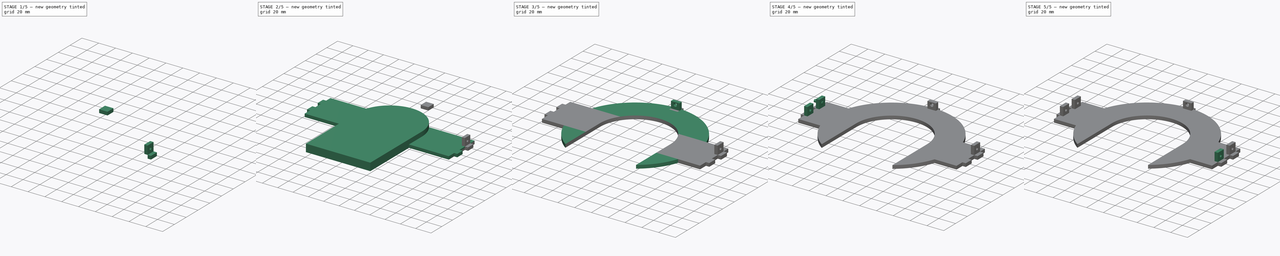
[diagram: build sequence overview — one tinted view per stage of 5, left to right]
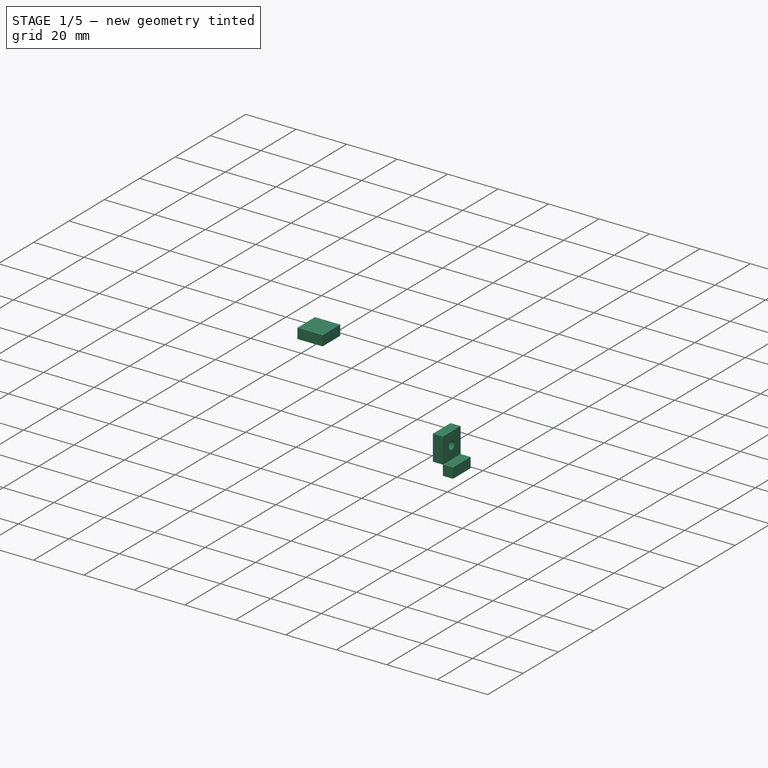
[diagram: stage 1 of 5 — iso view after this stage's code; geometry added in this stage tinted green]
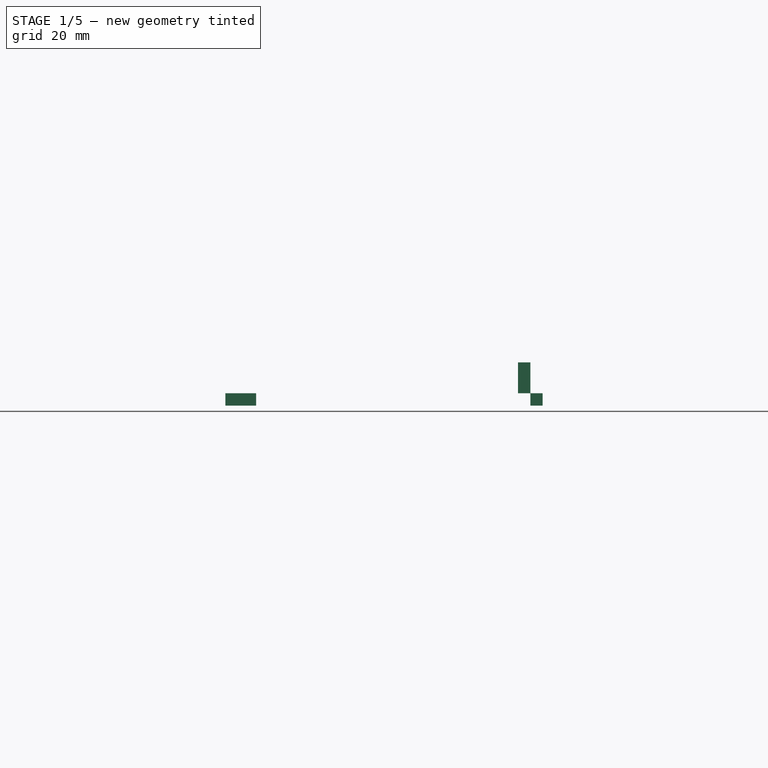
[diagram: stage 1 of 5 — front view after this stage's code; geometry added in this stage tinted green]
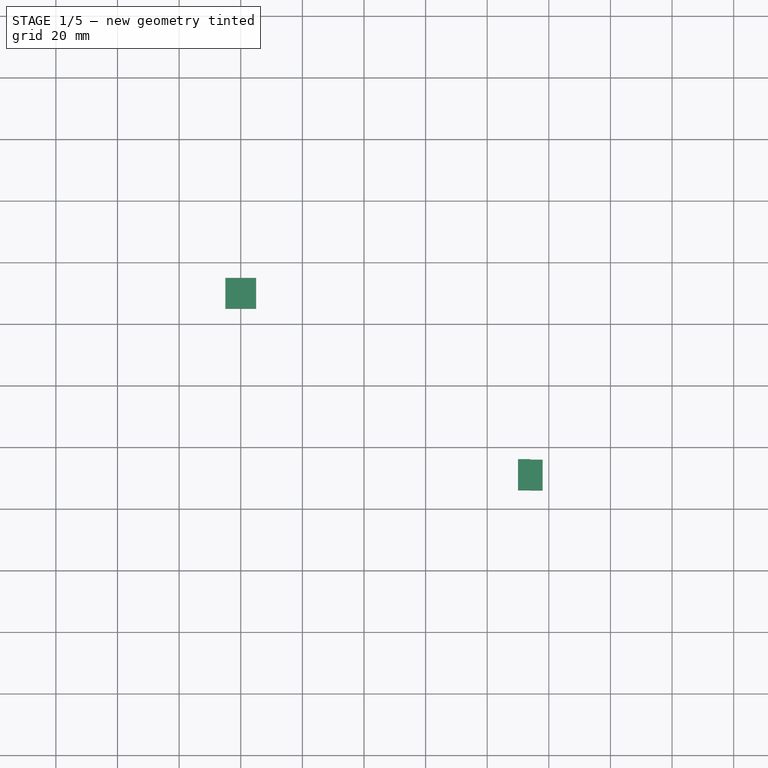
[diagram: stage 1 of 5 — top view after this stage's code; geometry added in this stage tinted green]
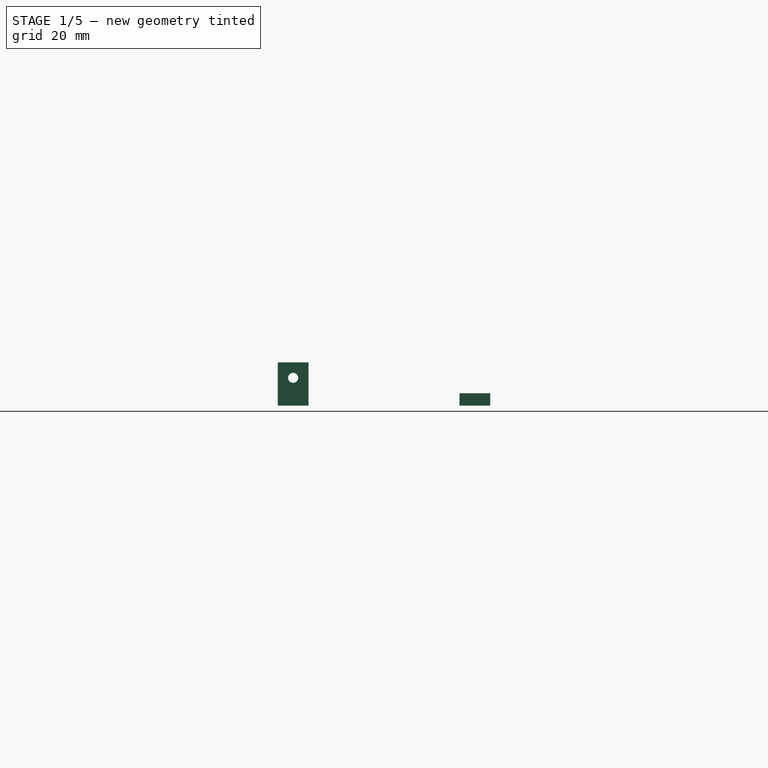
[diagram: stage 1 of 5 — right view after this stage's code; geometry added in this stage tinted green]
FCSTD DOCUMENT  (FreeCAD 0.21R33771 (Git))
Label: reactor-stand-c.v0.1
License: All rights reserved
LicenseURL: https://en.wikipedia.org/wiki/All_rights_reserved
objects: Part::Box×10, Part::Cut×6, Part::Cylinder×5, Sketcher::SketchObject×3, PartDesign::Pad×3, PartDesign::Body×2, Part::MultiFuse×2
note: 34 computed .brp shape members not serialized (recipe doc carries the construction recipe); baked Part::Feature solids carry a one-line shape summary decoded from their .brp

FEATURE [Part::Box] Box003  label="Side Tab 4"
  AttacherType = Attacher::AttachEngine3D
  Height = 4
  Length = 4
  Placement = pos=(94,6,0) rot=(0,0,1;0rad)
  Width = 10
FEATURE [Part::Box] Box004  label="Back Tab"
  AttacherType = Attacher::AttachEngine3D
  Height = 4
  Length = 10
  Placement = pos=(-5,65,0) rot=(0,0,1;0rad)
  Width = 10
FEATURE [Part::Box] Box006  label="Side Scew Tab 1"
  AttacherType = Attacher::AttachEngine3D
  Height = 10
  Length = 4
  Placement = pos=(90,6,4) rot=(0,0,1;0rad)
  Width = 10
FEATURE [Part::Cylinder] Cylinder002
  Angle = 360
  AttacherType = Attacher::AttachEngine3D
  FirstAngle = 0
  Height = 10
  Placement = pos=(85,11,9) rot=(0,1,0;1.5708rad)
  Radius = 1.625
  SecondAngle = 0
FEATURE [Part::Cut] Cut001
  Base = -> Box006
  Tool = -> Cylinder002
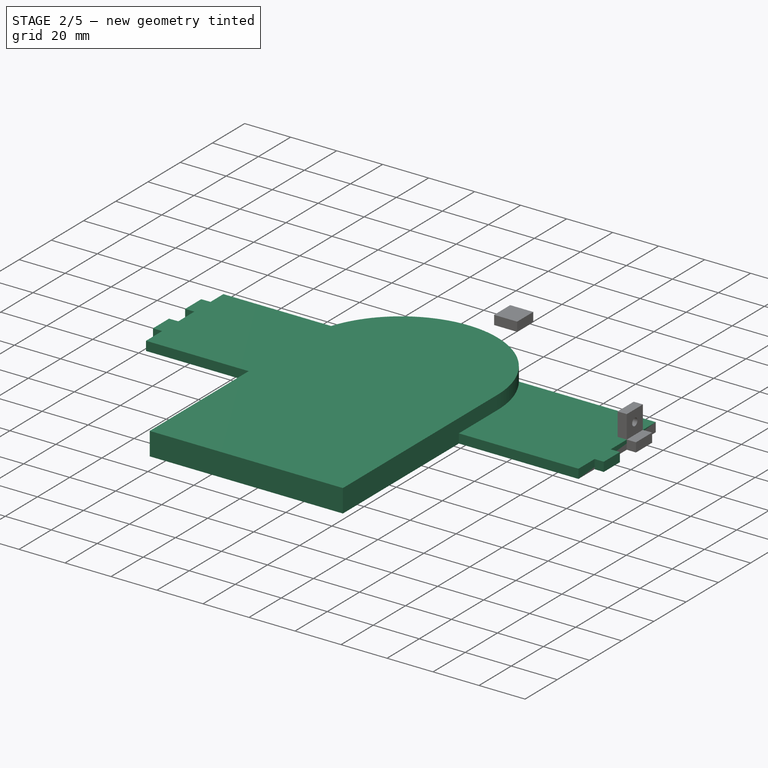
[diagram: stage 2 of 5 — iso view after this stage's code; geometry added in this stage tinted green]
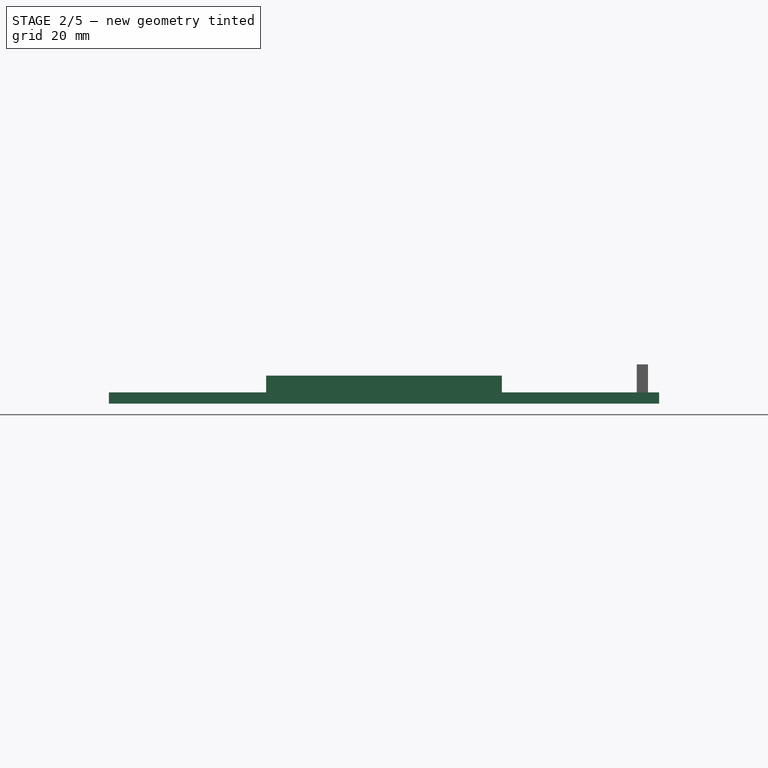
[diagram: stage 2 of 5 — front view after this stage's code; geometry added in this stage tinted green]
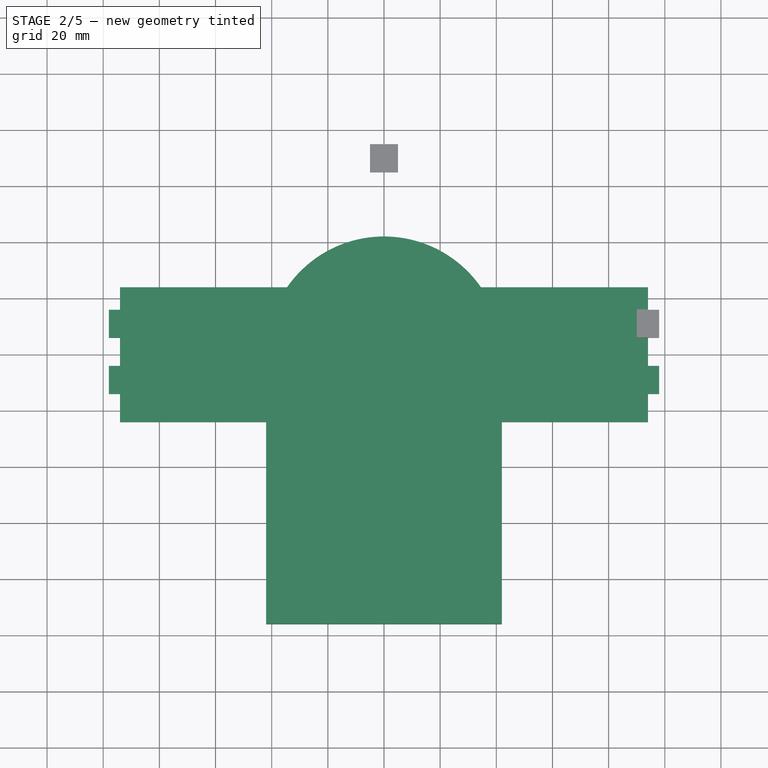
[diagram: stage 2 of 5 — top view after this stage's code; geometry added in this stage tinted green]
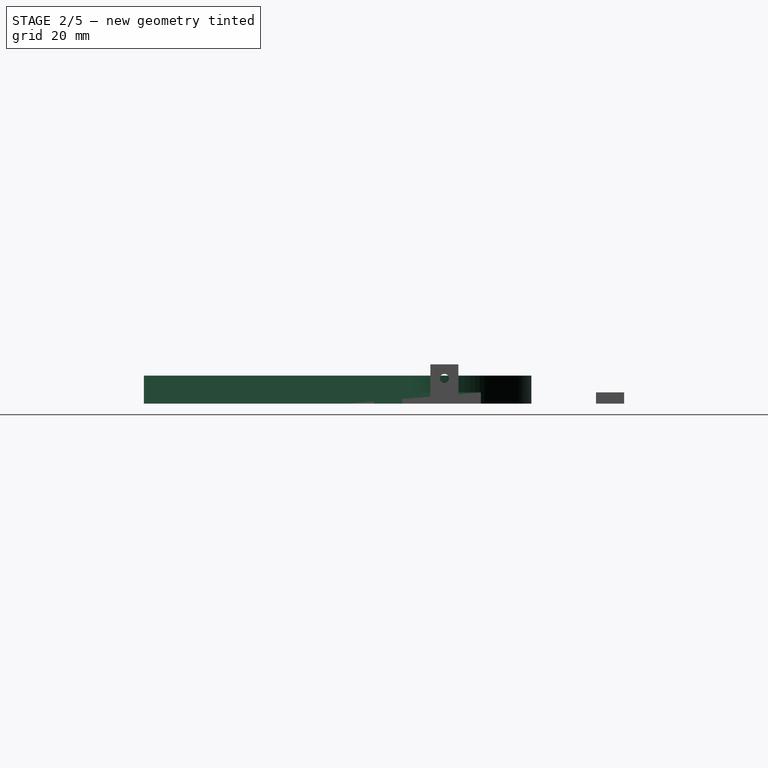
[diagram: stage 2 of 5 — right view after this stage's code; geometry added in this stage tinted green]
FEATURE [Sketcher::SketchObject] Sketch
  FullyConstrained = true
  MapMode = 5
  Support = -> [XY_Plane]
  sketch-geometry (4):
    g0: LineSegment StartX=-94 StartY=24 StartZ=0 EndX=94 EndY=24 EndZ=0
    g1: LineSegment StartX=94 StartY=24 StartZ=0 EndX=94 EndY=-24 EndZ=0
    g2: LineSegment StartX=94 StartY=-24 StartZ=0 EndX=-94 EndY=-24 EndZ=0
    g3: LineSegment StartX=-94 StartY=-24 StartZ=0 EndX=-94 EndY=24 EndZ=0
  constraints (11):
    c: Coincident(g0,g1)
    c: Coincident(g1,g2)
    c: Coincident(g2,g3)
    c: Coincident(g3,g0)
    c: Horizontal(g0)
    c: Horizontal(g2)
    c: Vertical(g1)
    c: Vertical(g3)
    c: Symmetric(g1,g0,g-1)
    c: DistanceX(g0,g0) = 188
    c: DistanceY(g3,g3) = 48
FEATURE [PartDesign::Pad] Pad
  Direction = (0,0,1)
  Length = 4
  Length2 = 10
  Profile = -> Sketch
  ReferenceAxis = -> Sketch [N_Axis]
  Type = 0
FEATURE [PartDesign::Body] Body  label="Part Body"
  Group = -> [Sketch,Pad,Sketch001,Pad001]
  Origin = -> Origin
  Tip = -> Pad001
FEATURE [Sketcher::SketchObject] Sketch002
  FullyConstrained = true
  MapMode = 5
  Support = -> [XY_Plane001]
  sketch-geometry (4):
    g0: ArcOfCircle CenterX=0 CenterY=0 CenterZ=0 NormalX=0 NormalY=0 NormalZ=1 AngleXU=0 Radius=42 StartAngle=0 EndAngle=3.14159
    g1: LineSegment StartX=-42 StartY=5.1e-15 StartZ=0 EndX=-42 EndY=-96 EndZ=0
    g2: LineSegment StartX=-42 StartY=-96 StartZ=0 EndX=42 EndY=-96 EndZ=0
    g3: LineSegment StartX=42 StartY=-96 StartZ=0 EndX=42 EndY=0 EndZ=0
  constraints (12):
    c: Coincident(g0,g-1)
    c: Diameter(g0) = 84
    c: Coincident(g1,g2)
    c: Coincident(g2,g3)
    c: Horizontal(g2)
    c: Vertical(g1)
    c: Vertical(g3)
    c: PointOnObject(g3,g-1)
    c: DistanceY(g3,g3) = 96
    c: Equal(g1,g3)
    c: Coincident(g0,g1)
    c: Coincident(g0,g3)
FEATURE [PartDesign::Pad] Pad002
  Direction = (0,0,1)
  Length = 10
  Length2 = 10
  Profile = -> Sketch002
  ReferenceAxis = -> Sketch002 [N_Axis]
  Type = 0
FEATURE [Part::Box] Box  label="Side Tab 1"
  AttacherType = Attacher::AttachEngine3D
  Height = 4
  Length = 4
  Placement = pos=(-98,6,0) rot=(0,0,1;0rad)
  Width = 10
FEATURE [Part::Box] Box001  label="Side Tab 2"
  AttacherType = Attacher::AttachEngine3D
  Height = 4
  Length = 4
  Placement = pos=(-98,-14,0) rot=(0,0,1;0rad)
  Width = 10
FEATURE [Part::Box] Box002  label="Side Tab 3"
  AttacherType = Attacher::AttachEngine3D
  Height = 4
  Length = 4
  Placement = pos=(94,-14,0) rot=(0,0,1;0rad)
  Width = 10
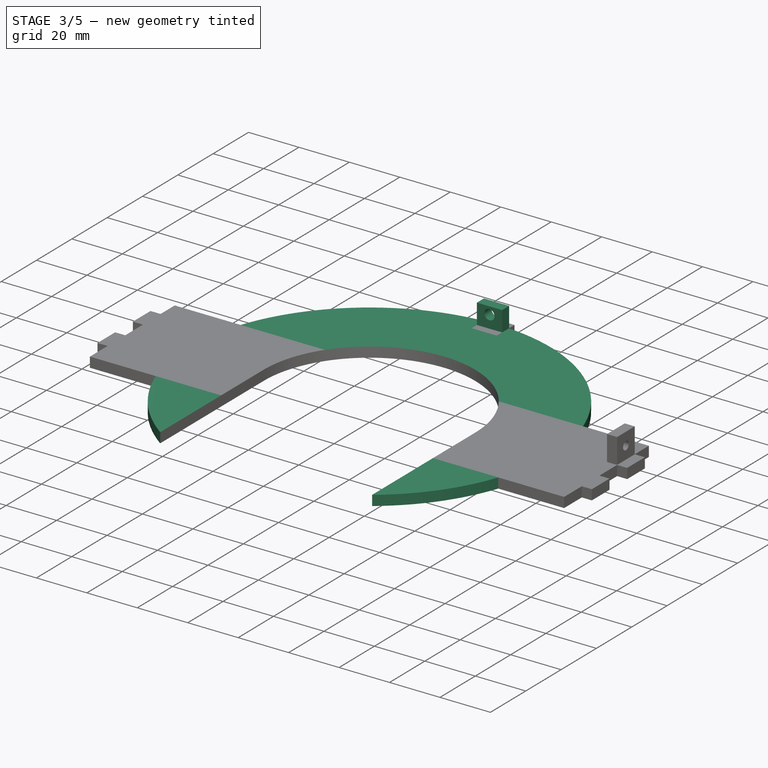
[diagram: stage 3 of 5 — iso view after this stage's code; geometry added in this stage tinted green]
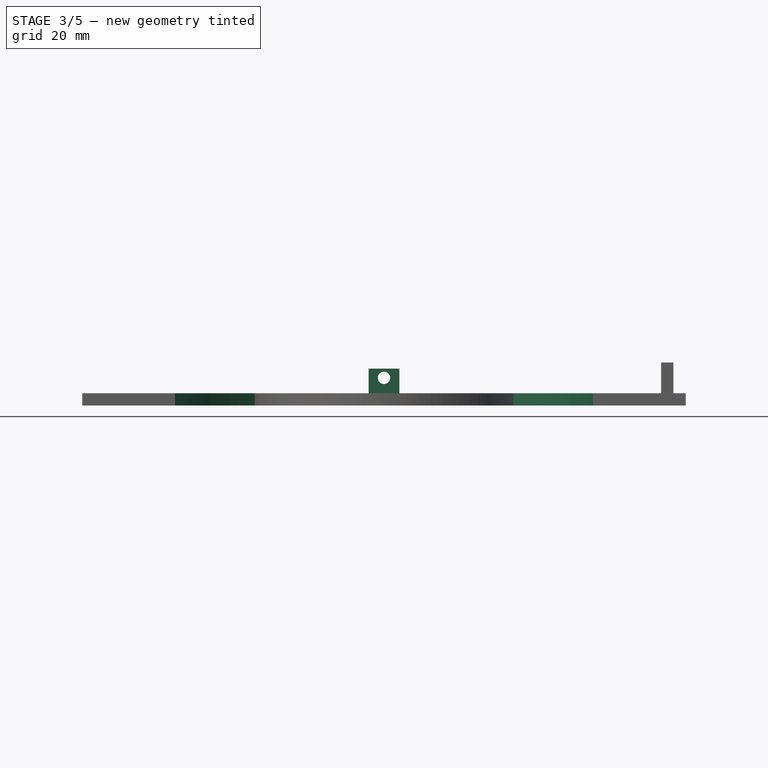
[diagram: stage 3 of 5 — front view after this stage's code; geometry added in this stage tinted green]
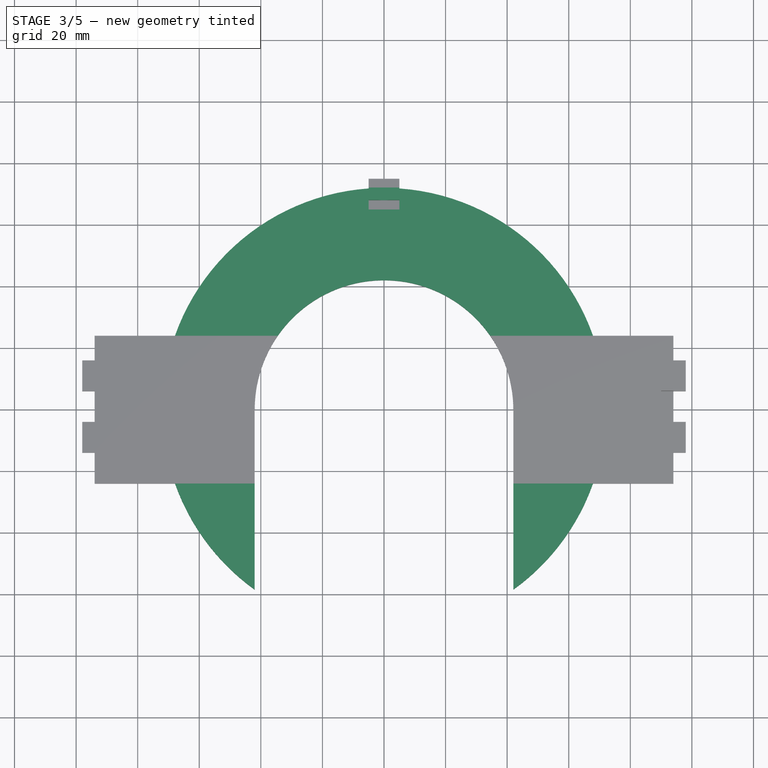
[diagram: stage 3 of 5 — top view after this stage's code; geometry added in this stage tinted green]
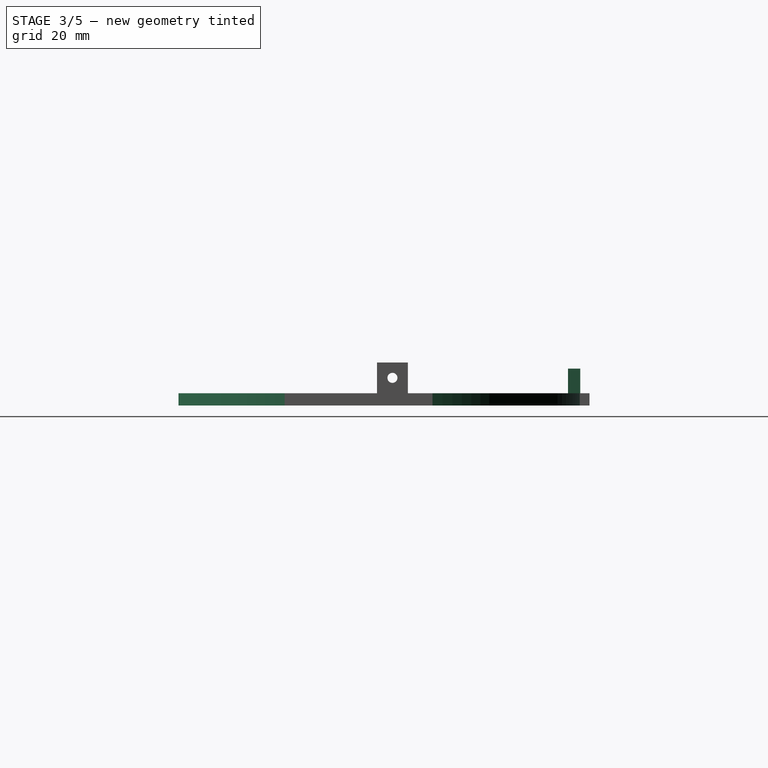
[diagram: stage 3 of 5 — right view after this stage's code; geometry added in this stage tinted green]
FEATURE [Sketcher::SketchObject] Sketch001
  FullyConstrained = true
  MapMode = 5
  Placement = pos=(0,0,4) rot=(0,0,1;0rad)
  Support = -> [Pad]
  sketch-geometry (1):
    g0: Circle CenterX=0 CenterY=0 CenterZ=0 NormalX=0 NormalY=0 NormalZ=1 AngleXU=0 Radius=72
  constraints (2):
    c: Coincident(g0,g-1)
    c: Diameter(g0) = 144
FEATURE [PartDesign::Pad] Pad001
  BaseFeature = -> Pad
  Direction = (0,0,-1)
  Length = 4
  Length2 = 10
  Profile = -> Sketch001
  ReferenceAxis = -> Sketch001 [N_Axis]
  Type = 0
  UseCustomVector = true
FEATURE [PartDesign::Body] Body001  label="Center Removal"
  Group = -> [Sketch002,Pad002]
  Origin = -> Origin001
  Tip = -> Pad002
FEATURE [Part::Cut] Cut
  Base = -> Body
  Tool = -> Body001
FEATURE [Part::Box] Box005  label="Back Screw Tab"
  AttacherType = Attacher::AttachEngine3D
  Height = 8
  Length = 10
  Placement = pos=(-5,68,4) rot=(0,0,1;0rad)
  Width = 4
FEATURE [Part::Cylinder] Cylinder004
  Angle = 360
  AttacherType = Attacher::AttachEngine3D
  FirstAngle = 0
  Height = 10
  Placement = pos=(0,64,9) rot=(-1,0,0;1.5708rad)
  Radius = 2
  SecondAngle = 0
FEATURE [Part::Cut] Cut005
  Base = -> Box005
  Tool = -> Cylinder004
FEATURE [Part::MultiFuse] Fusion
  Shapes = -> [Cut,Box,Box001,Box002,Box003,Box004,Cut001]
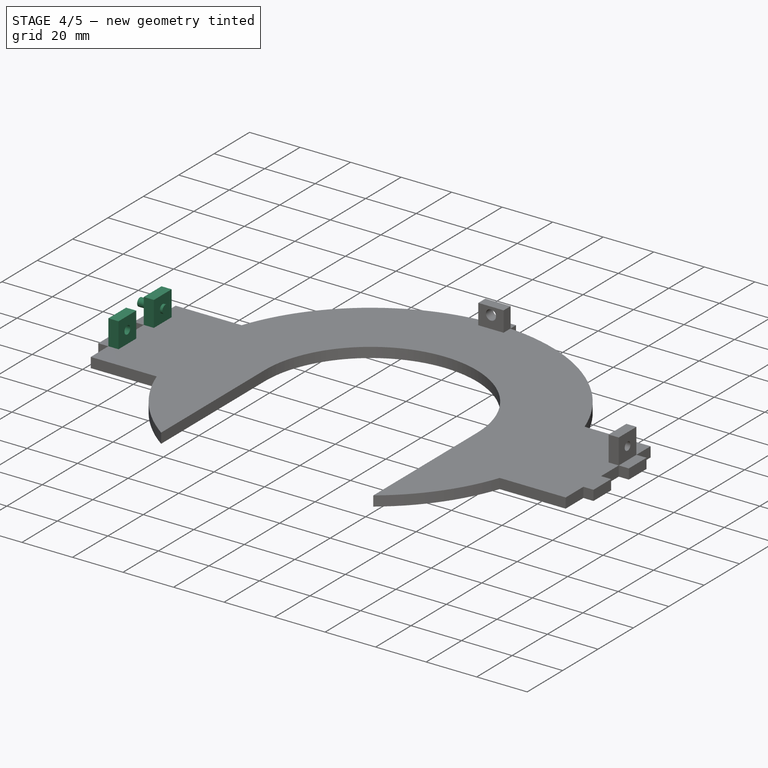
[diagram: stage 4 of 5 — iso view after this stage's code; geometry added in this stage tinted green]
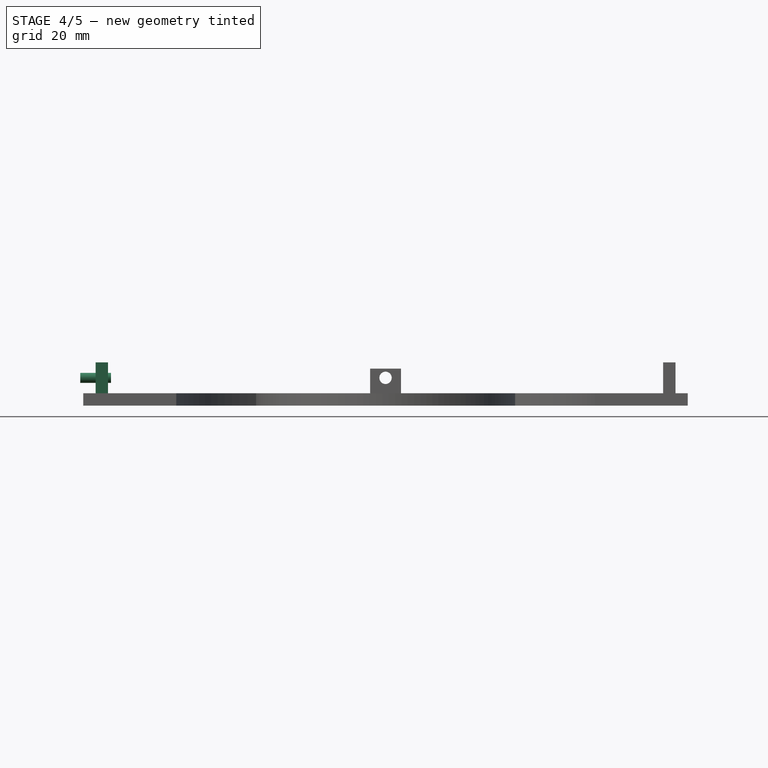
[diagram: stage 4 of 5 — front view after this stage's code; geometry added in this stage tinted green]
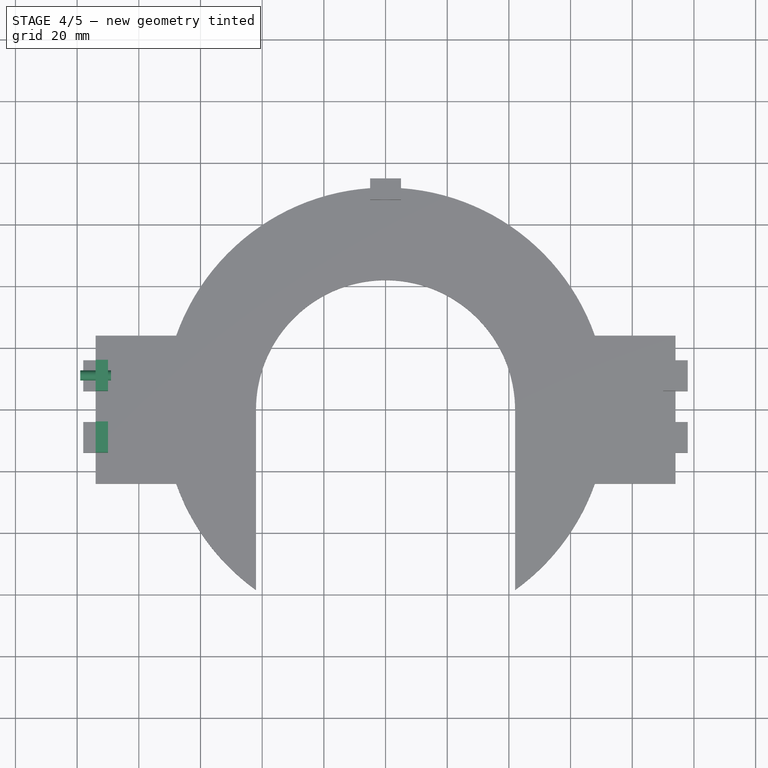
[diagram: stage 4 of 5 — top view after this stage's code; geometry added in this stage tinted green]
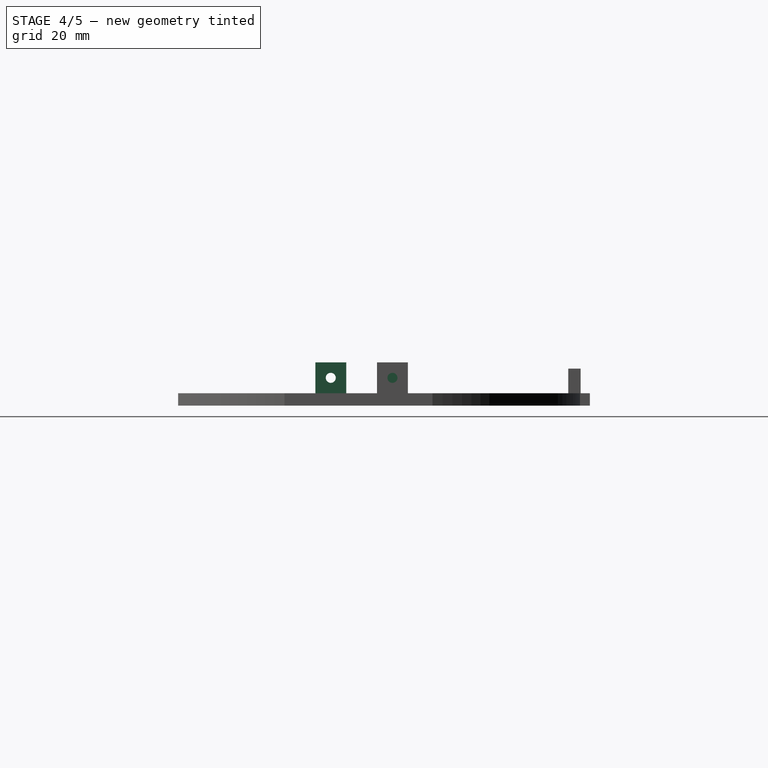
[diagram: stage 4 of 5 — right view after this stage's code; geometry added in this stage tinted green]
FEATURE [Part::Box] Box008  label="Side Scew Tab 003"
  AttacherType = Attacher::AttachEngine3D
  Height = 10
  Length = 4
  Placement = pos=(-94,6,4) rot=(0,0,1;0rad)
  Width = 10
FEATURE [Part::Box] Box009  label="Side Scew Tab 004"
  AttacherType = Attacher::AttachEngine3D
  Height = 10
  Length = 4
  Placement = pos=(-94,-14,4) rot=(0,0,1;0rad)
  Width = 10
FEATURE [Part::Cylinder] Cylinder
  Angle = 360
  AttacherType = Attacher::AttachEngine3D
  FirstAngle = 0
  Height = 10
  Placement = pos=(-99,11,9) rot=(0,1,0;1.5708rad)
  Radius = 1.625
  SecondAngle = 0
FEATURE [Part::Cylinder] Cylinder001
  Angle = 360
  AttacherType = Attacher::AttachEngine3D
  FirstAngle = 0
  Height = 10
  Placement = pos=(-99,-9,9) rot=(0,1,0;1.5708rad)
  Radius = 1.625
  SecondAngle = 0
FEATURE [Part::Cut] Cut004
  Base = -> Box009
  Tool = -> Cylinder001
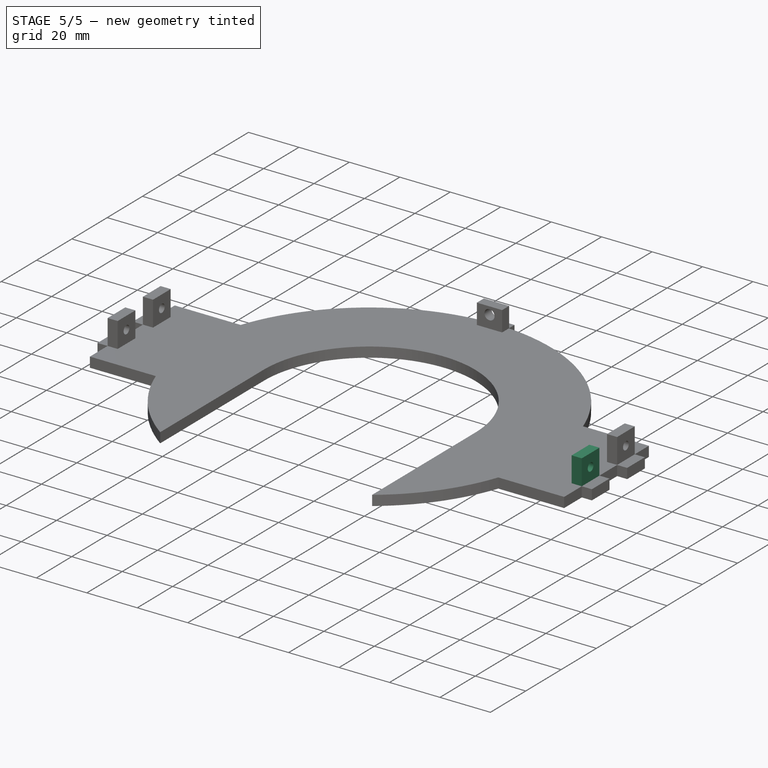
[diagram: stage 5 of 5 — iso view after this stage's code; geometry added in this stage tinted green]
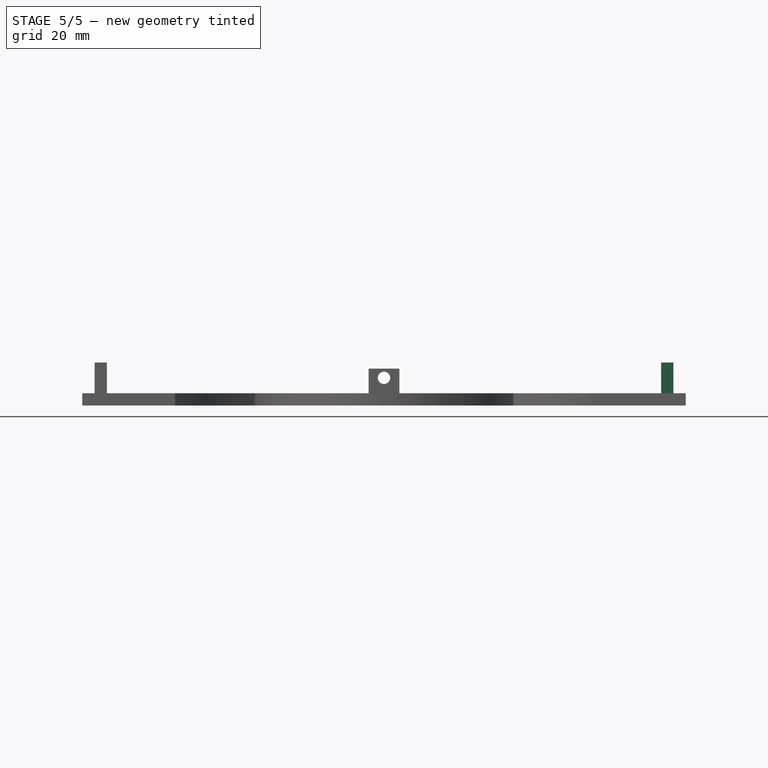
[diagram: stage 5 of 5 — front view after this stage's code; geometry added in this stage tinted green]
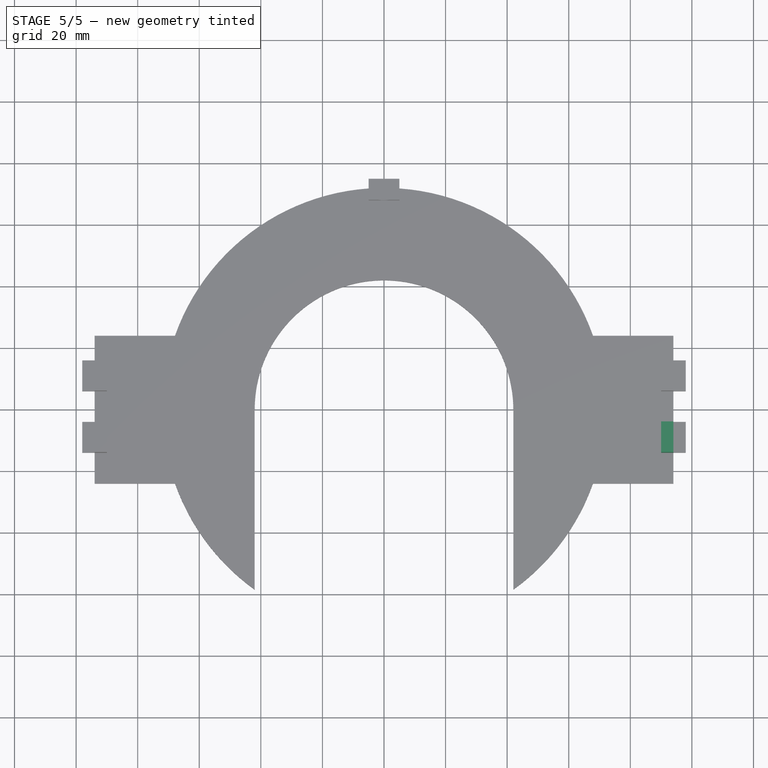
[diagram: stage 5 of 5 — top view after this stage's code; geometry added in this stage tinted green]
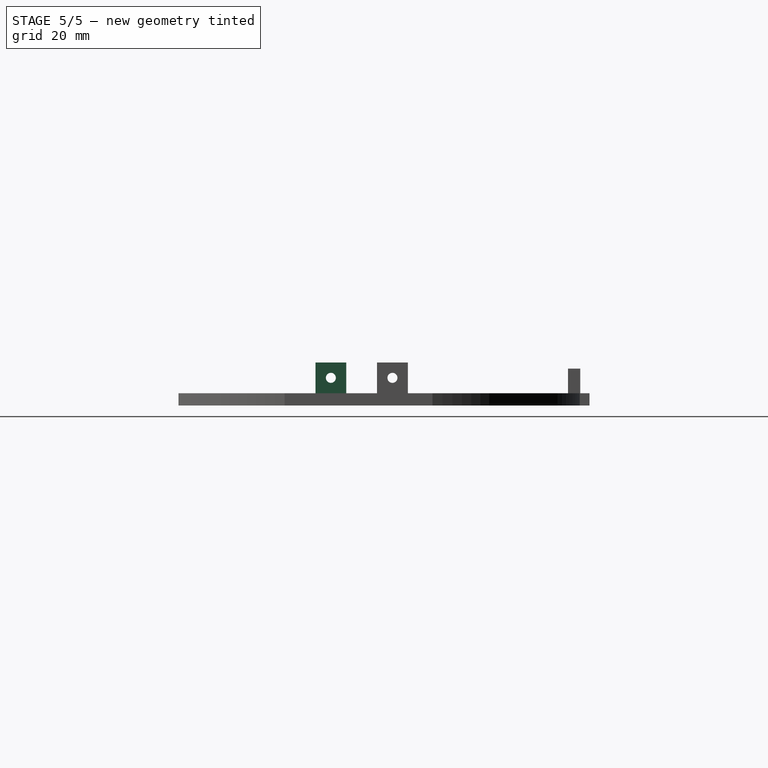
[diagram: stage 5 of 5 — right view after this stage's code; geometry added in this stage tinted green]
FEATURE [Part::Box] Box007  label="Side Scew Tab 002"
  AttacherType = Attacher::AttachEngine3D
  Height = 10
  Length = 4
  Placement = pos=(90,-14,4) rot=(0,0,1;0rad)
  Width = 10
FEATURE [Part::Cylinder] Cylinder003
  Angle = 360
  AttacherType = Attacher::AttachEngine3D
  FirstAngle = 0
  Height = 10
  Placement = pos=(85,-9,9) rot=(0,1,0;1.5708rad)
  Radius = 1.625
  SecondAngle = 0
FEATURE [Part::Cut] Cut002
  Base = -> Box007
  Tool = -> Cylinder003
FEATURE [Part::Cut] Cut003
  Base = -> Box008
  Tool = -> Cylinder
FEATURE [Part::MultiFuse] Fusion001
  Shapes = -> [Fusion,Cut005,Cut004,Cut003,Cut002]
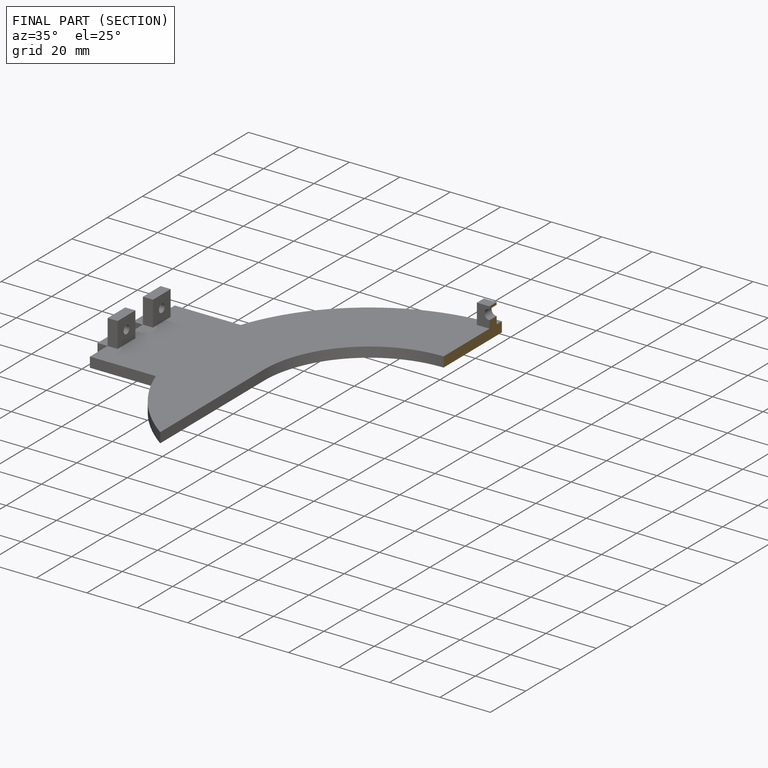
[diagram: finished part — half-section view (interior)]
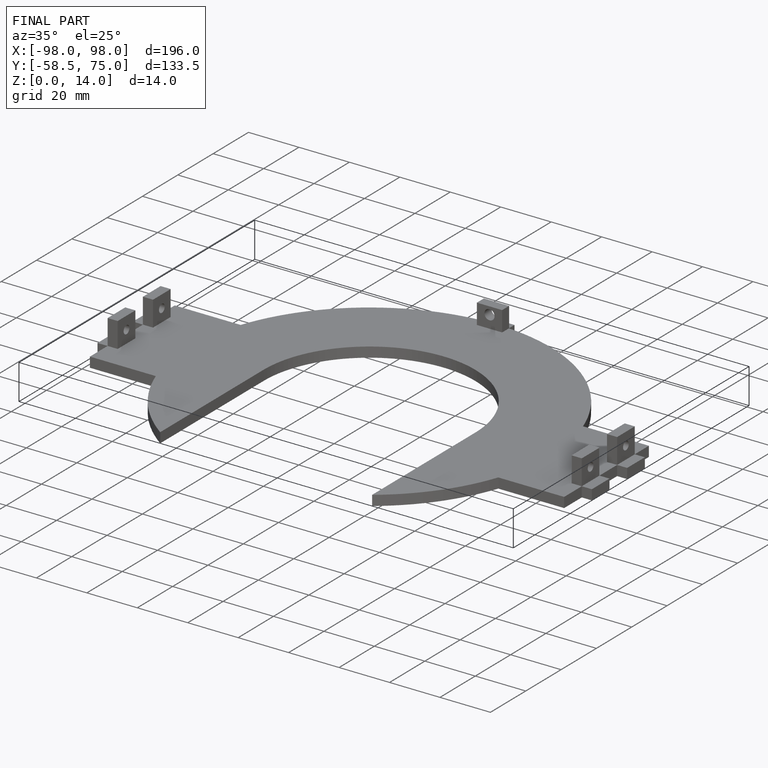
[diagram: finished part — iso view with bounding-box wireframe]
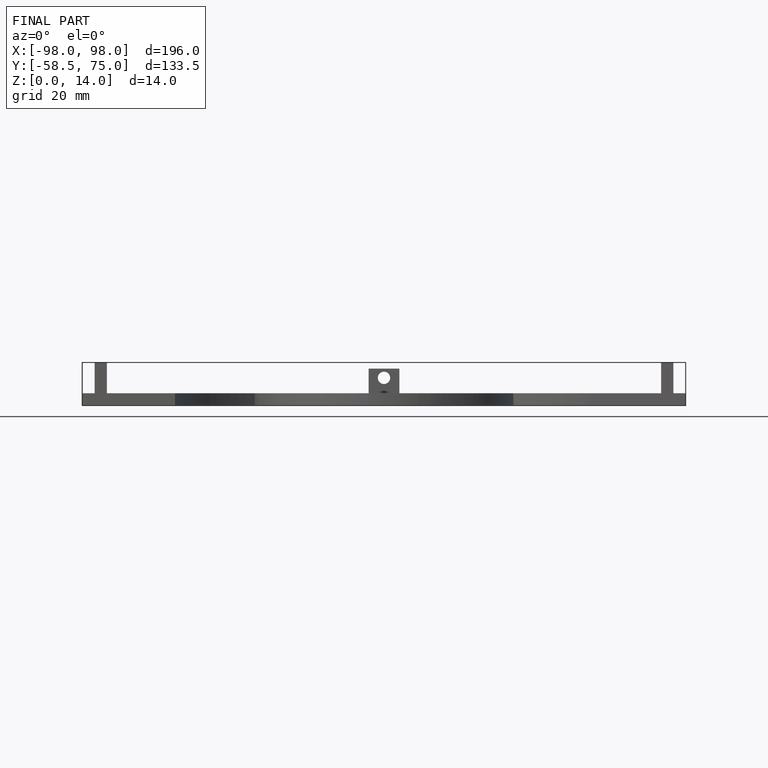
[diagram: finished part — front view with bounding-box wireframe]
